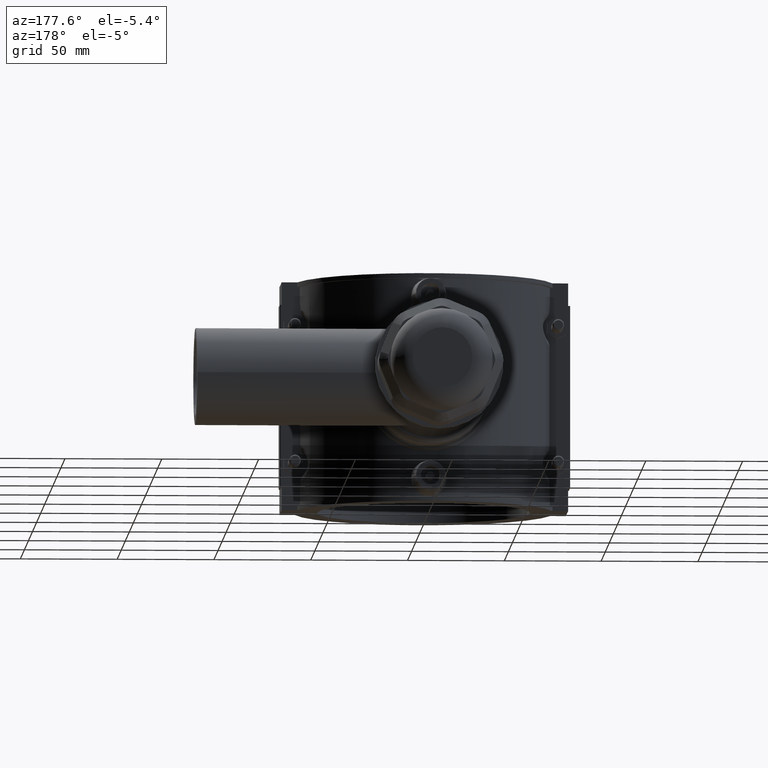
[diagram: clean part render]
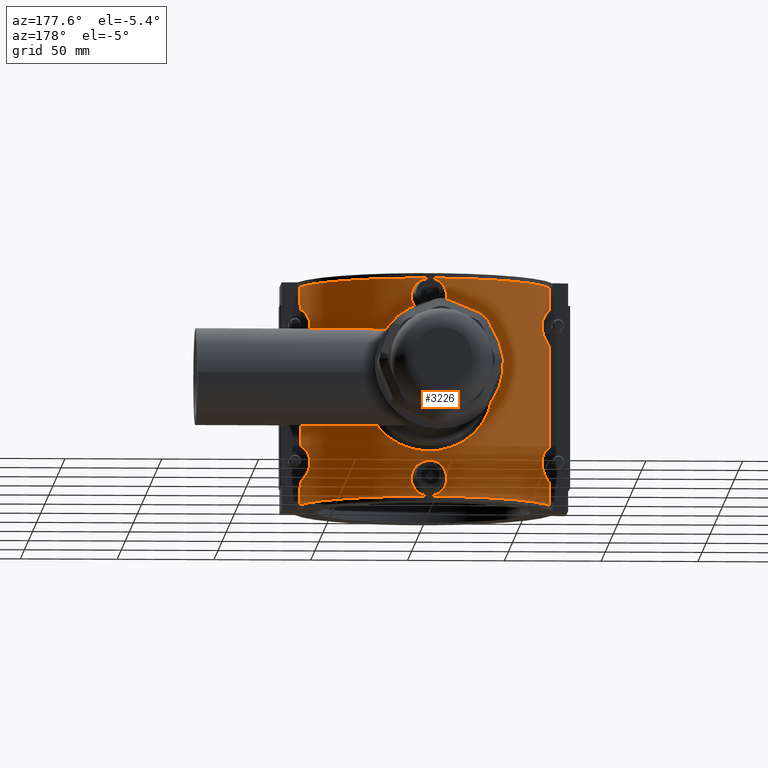
[diagram: same view with one face highlighted and labeled with its STEP entity id]
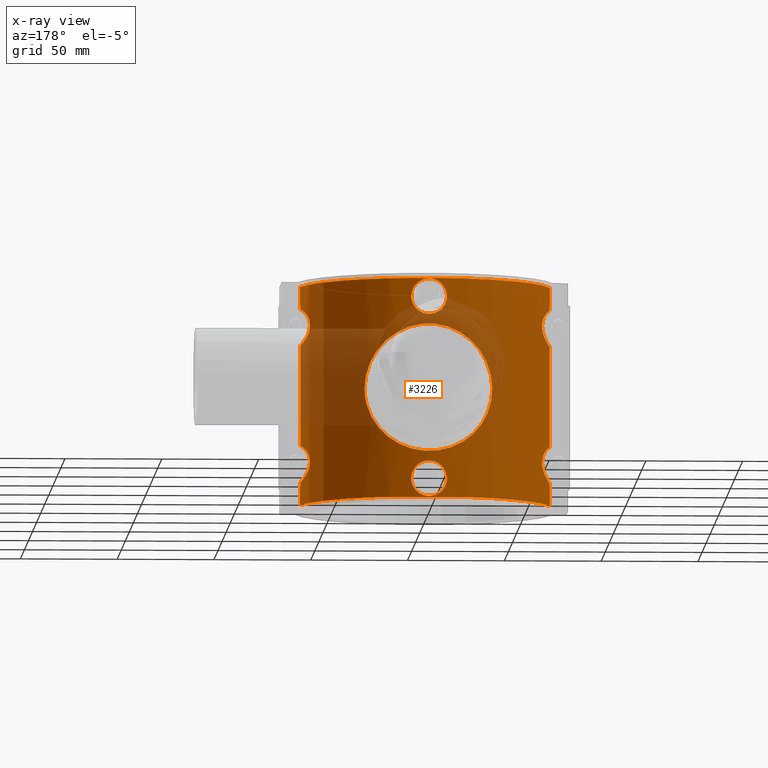
[diagram: x-ray of the same camera — body ghosted, the highlighted face saturated]
A machine part, auxiliary view. The second image highlights one B-rep face of the part: STEP entity #3226.
The next image is the same camera in x-ray: the body ghosted, the highlighted face saturated — about 25% of this face is hidden behind the body in this view.
In plain terms, the highlighted cylindrical surface (partial cylindrical patch) has radius 66 mm, axis along (0, 0, 1).
Its self-contained STEP definition (entity closure, byte-faithful):
#112=LINE('',#5493,#399);
#132=LINE('',#5576,#419);
#136=LINE('',#5584,#423);
#137=LINE('',#5588,#424);
#138=LINE('',#5603,#425);
#139=LINE('',#5620,#426);
#140=LINE('',#5623,#427);
#141=LINE('',#5627,#428);
#142=LINE('',#5643,#429);
#143=LINE('',#5660,#430);
#399=VECTOR('',#3977,9.43999999999999);
#419=VECTOR('',#4025,9.43999999999999);
#423=VECTOR('',#4031,9.43999999999999);
#424=VECTOR('',#4034,2.44823811899649);
#425=VECTOR('',#4035,52.096476237993);
#426=VECTOR('',#4036,2.4482381189965);
#427=VECTOR('',#4039,9.43999999999999);
#428=VECTOR('',#4042,2.4482381189965);
#429=VECTOR('',#4043,52.096476237993);
#430=VECTOR('',#4044,2.44823811899649);
#640=FACE_BOUND('',#1057,.T.);
#641=FACE_BOUND('',#1058,.T.);
#642=FACE_BOUND('',#1059,.T.);
#688=B_SPLINE_CURVE_WITH_KNOTS('',3,(#5395,#5396,#5397,#5398,#5399,#5400,
#5401,#5402,#5403,#5404,#5405,#5406,#5407,#5408,#5409,#5410,#5411,#5412,
#5413,#5414,#5415,#5416,#5417,#5418,#5419,#5420,#5421,#5422,#5423,#5424,
#5425,#5426,#5427,#5428,#5429,#5430,#5431,#5432,#5433,#5434,#5435,#5436,
#5437,#5438,#5439,#5440,#5441,#5442,#5443,#5444,#5445,#5446,#5447,#5448,
#5449,#5450,#5451,#5452,#5453,#5454,#5455,#5456,#5457,#5458,#5459,#5460),
 .UNSPECIFIED.,.T.,.F.,(4,2,2,2,2,2,2,2,2,2,2,2,2,2,2,2,2,2,2,2,2,2,2,2,
2,2,2,2,2,2,2,2,4),(0.,0.635110081454431,1.27022016290886,1.90533024436329,
2.54044032581772,3.17381906630573,3.80719780679374,4.44057654728175,5.07395528776976,
5.70733402825777,6.34071276874578,6.97409150923379,7.6074702497218,8.24258033117624,
8.87769041263067,9.5128004940851,10.1479105755395,10.783020656994,11.4181307384484,
12.0532408199028,12.6883509013572,13.3217296418453,13.9551083823333,14.5884871228213,
15.2218658633093,15.8552446037973,16.4886233442853,17.1220020847733,17.7553808252613,
18.3904909067158,19.0256009881702,19.6607110696246,20.2958211510791),
 .UNSPECIFIED.);
#691=B_SPLINE_CURVE_WITH_KNOTS('',3,(#5590,#5591,#5592,#5593,#5594,#5595,
#5596,#5597,#5598,#5599,#5600,#5601),.UNSPECIFIED.,.F.,.F.,(4,1,1,1,1,1,
1,1,1,4),(-3.87372629675472,-3.39800032867908,-2.92227436060344,-2.44654839252779,
-2.32761690050888,-1.97082242445215,-1.73295944041433,-1.49509645637651,
-1.01937048830087,-0.543644520225222),.UNSPECIFIED.);
#692=B_SPLINE_CURVE_WITH_KNOTS('',3,(#5605,#5606,#5607,#5608,#5609,#5610,
#5611,#5612,#5613,#5614,#5615,#5616,#5617,#5618),.UNSPECIFIED.,.F.,.F.,
(4,1,1,1,1,1,1,1,1,1,1,4),(-3.87372630043149,-3.3980003318308,-2.92227436323011,
-2.68441137892976,-2.44654839462942,-2.20868541032907,-1.97082242602873,
-1.85189093387856,-1.73295944172838,-1.49509645742804,-1.01937048882735,
-0.543644520226659),.UNSPECIFIED.);
#693=B_SPLINE_CURVE_WITH_KNOTS('',3,(#5629,#5630,#5631,#5632,#5633,#5634,
#5635,#5636,#5637,#5638,#5639,#5640,#5641),.UNSPECIFIED.,.F.,.F.,(4,1,1,
1,1,1,1,1,1,1,4),(-3.87318618089828,-3.39746020268988,-2.92173422448147,
-2.68387123537727,-2.44600824627306,-2.20814525716886,-1.97028226806466,
-1.73241927896045,-1.49455628985625,-1.01883031164784,-0.543104333439435),
 .UNSPECIFIED.);
#694=B_SPLINE_CURVE_WITH_KNOTS('',3,(#5645,#5646,#5647,#5648,#5649,#5650,
#5651,#5652,#5653,#5654,#5655,#5656,#5657,#5658),.UNSPECIFIED.,.F.,.F.,
(4,1,1,1,1,1,1,1,1,1,1,4),(-3.87372630198934,-3.39800033316619,-2.92227436434304,
-2.68441137993146,-2.44654839551988,-2.20868541110831,-1.97082242669673,
-1.85189093449094,-1.73295944228515,-1.49509645787358,-1.01937048905042,
-0.543644520227269),.UNSPECIFIED.);
#695=B_SPLINE_CURVE_WITH_KNOTS('',3,(#5663,#5664,#5665,#5666,#5667,#5668,
#5669,#5670,#5671,#5672,#5673,#5674,#5675,#5676,#5677,#5678,#5679,#5680,
#5681,#5682,#5683,#5684,#5685,#5686,#5687,#5688,#5689,#5690,#5691,#5692,
#5693,#5694,#5695,#5696),.UNSPECIFIED.,.T.,.F.,(4,2,2,2,2,2,2,2,2,2,2,2,
2,2,2,2,4),(0.,0.346935904986798,0.693871809973595,1.04030921731693,1.38674662466027,
1.73318403200361,2.07962143934695,2.42655734433375,2.77349324932054,3.12042915430734,
3.46736505929414,3.81380246663748,4.16023987398082,4.50667728132415,4.85311468866749,
5.20005059365429,5.54698649864109),.UNSPECIFIED.);
#696=B_SPLINE_CURVE_WITH_KNOTS('',3,(#5698,#5699,#5700,#5701,#5702,#5703,
#5704,#5705,#5706,#5707,#5708,#5709,#5710,#5711,#5712,#5713,#5714,#5715,
#5716,#5717,#5718,#5719,#5720,#5721,#5722,#5723,#5724,#5725,#5726,#5727,
#5728,#5729,#5730,#5731),.UNSPECIFIED.,.T.,.F.,(4,2,2,2,2,2,2,2,2,2,2,2,
2,2,2,2,4),(0.,0.346935904986798,0.693871809973595,1.04030921731693,1.38674662466027,
1.73318403200361,2.07962143934695,2.42655734433375,2.77349324932054,3.12042915430734,
3.46736505929414,3.81380246663748,4.16023987398082,4.50667728132415,4.85311468866749,
5.20005059365429,5.54698649864109),.UNSPECIFIED.);
#749=CYLINDRICAL_SURFACE('',#3485,66.);
#846=FACE_OUTER_BOUND('',#1056,.T.);
#1056=EDGE_LOOP('',(#2408,#2409,#2410,#2411,#2412,#2413,#2414,#2415,#2416,
#2417,#2418,#2419,#2420,#2421,#2422,#2423,#2424,#2425,#2426,#2427));
#1057=EDGE_LOOP('',(#2428));
#1058=EDGE_LOOP('',(#2429));
#1059=EDGE_LOOP('',(#2430));
#1264=CIRCLE('',#3464,66.);
#1272=CIRCLE('',#3478,66.);
#1276=CIRCLE('',#3486,66.);
#1277=CIRCLE('',#3487,66.);
#1278=CIRCLE('',#3488,66.);
#1279=CIRCLE('',#3489,66.);
#1417=VERTEX_POINT('',#5394);
#1422=VERTEX_POINT('',#5471);
#1423=VERTEX_POINT('',#5473);
#1430=VERTEX_POINT('',#5492);
#1450=VERTEX_POINT('',#5559);
#1451=VERTEX_POINT('',#5561);
#1455=VERTEX_POINT('',#5575);
#1458=VERTEX_POINT('',#5583);
#1459=VERTEX_POINT('',#5585);
#1460=VERTEX_POINT('',#5587);
#1461=VERTEX_POINT('',#5589);
#1462=VERTEX_POINT('',#5602);
#1463=VERTEX_POINT('',#5604);
#1464=VERTEX_POINT('',#5619);
#1465=VERTEX_POINT('',#5622);
#1466=VERTEX_POINT('',#5624);
#1467=VERTEX_POINT('',#5626);
#1468=VERTEX_POINT('',#5628);
#1469=VERTEX_POINT('',#5642);
#1470=VERTEX_POINT('',#5644);
#1471=VERTEX_POINT('',#5659);
#1472=VERTEX_POINT('',#5662);
#1473=VERTEX_POINT('',#5697);
#1768=EDGE_CURVE('',#1417,#1417,#688,.T.);
#1775=EDGE_CURVE('',#1422,#1423,#1264,.T.);
#1783=EDGE_CURVE('',#1430,#1422,#112,.T.);
#1806=EDGE_CURVE('',#1451,#1450,#1272,.T.);
#1813=EDGE_CURVE('',#1451,#1455,#132,.T.);
#1817=EDGE_CURVE('',#1458,#1423,#136,.T.);
#1818=EDGE_CURVE('',#1458,#1459,#1276,.T.);
#1819=EDGE_CURVE('',#1459,#1460,#137,.T.);
#1820=EDGE_CURVE('',#1461,#1460,#691,.T.);
#1821=EDGE_CURVE('',#1461,#1462,#138,.T.);
#1822=EDGE_CURVE('',#1463,#1462,#692,.T.);
#1823=EDGE_CURVE('',#1463,#1464,#139,.T.);
#1824=EDGE_CURVE('',#1464,#1455,#1277,.T.);
#1825=EDGE_CURVE('',#1450,#1465,#140,.T.);
#1826=EDGE_CURVE('',#1465,#1466,#1278,.T.);
#1827=EDGE_CURVE('',#1466,#1467,#141,.T.);
#1828=EDGE_CURVE('',#1468,#1467,#693,.T.);
#1829=EDGE_CURVE('',#1468,#1469,#142,.T.);
#1830=EDGE_CURVE('',#1470,#1469,#694,.T.);
#1831=EDGE_CURVE('',#1470,#1471,#143,.T.);
#1832=EDGE_CURVE('',#1471,#1430,#1279,.T.);
#1833=EDGE_CURVE('',#1472,#1472,#695,.T.);
#1834=EDGE_CURVE('',#1473,#1473,#696,.T.);
#2408=ORIENTED_EDGE('',*,*,#1775,.T.);
#2409=ORIENTED_EDGE('',*,*,#1817,.F.);
#2410=ORIENTED_EDGE('',*,*,#1818,.T.);
#2411=ORIENTED_EDGE('',*,*,#1819,.T.);
#2412=ORIENTED_EDGE('',*,*,#1820,.F.);
#2413=ORIENTED_EDGE('',*,*,#1821,.T.);
#2414=ORIENTED_EDGE('',*,*,#1822,.F.);
#2415=ORIENTED_EDGE('',*,*,#1823,.T.);
#2416=ORIENTED_EDGE('',*,*,#1824,.T.);
#2417=ORIENTED_EDGE('',*,*,#1813,.F.);
#2418=ORIENTED_EDGE('',*,*,#1806,.T.);
#2419=ORIENTED_EDGE('',*,*,#1825,.T.);
#2420=ORIENTED_EDGE('',*,*,#1826,.T.);
#2421=ORIENTED_EDGE('',*,*,#1827,.T.);
#2422=ORIENTED_EDGE('',*,*,#1828,.F.);
#2423=ORIENTED_EDGE('',*,*,#1829,.T.);
#2424=ORIENTED_EDGE('',*,*,#1830,.F.);
#2425=ORIENTED_EDGE('',*,*,#1831,.T.);
#2426=ORIENTED_EDGE('',*,*,#1832,.T.);
#2427=ORIENTED_EDGE('',*,*,#1783,.T.);
#2428=ORIENTED_EDGE('',*,*,#1768,.T.);
#2429=ORIENTED_EDGE('',*,*,#1833,.T.);
#2430=ORIENTED_EDGE('',*,*,#1834,.T.);
#3226=ADVANCED_FACE('',(#846,#640,#641,#642),#749,.T.);
#3464=AXIS2_PLACEMENT_3D('',#5475,#3959,#3960);
#3478=AXIS2_PLACEMENT_3D('',#5562,#4008,#4009);
#3485=AXIS2_PLACEMENT_3D('',#5582,#4029,#4030);
#3486=AXIS2_PLACEMENT_3D('',#5586,#4032,#4033);
#3487=AXIS2_PLACEMENT_3D('',#5621,#4037,#4038);
#3488=AXIS2_PLACEMENT_3D('',#5625,#4040,#4041);
#3489=AXIS2_PLACEMENT_3D('',#5661,#4045,#4046);
#3959=DIRECTION('center_axis',(0.,0.,1.));
#3960=DIRECTION('ref_axis',(1.,0.,0.));
#3977=DIRECTION('',(0.,0.,-1.));
#4008=DIRECTION('center_axis',(0.,0.,-1.));
#4009=DIRECTION('ref_axis',(1.,0.,0.));
#4025=DIRECTION('',(0.,0.,-1.));
#4029=DIRECTION('center_axis',(0.,0.,1.));
#4030=DIRECTION('ref_axis',(1.,0.,0.));
#4031=DIRECTION('',(0.,0.,-1.));
#4032=DIRECTION('center_axis',(0.,0.,-1.));
#4033=DIRECTION('ref_axis',(1.,0.,0.));
#4034=DIRECTION('',(0.,0.,1.));
#4035=DIRECTION('',(0.,0.,1.));
#4036=DIRECTION('',(0.,0.,1.));
#4037=DIRECTION('center_axis',(0.,0.,1.));
#4038=DIRECTION('ref_axis',(1.,0.,0.));
#4039=DIRECTION('',(0.,0.,-1.));
#4040=DIRECTION('center_axis',(0.,0.,1.));
#4041=DIRECTION('ref_axis',(1.,0.,0.));
#4042=DIRECTION('',(0.,0.,-1.));
#4043=DIRECTION('',(0.,0.,-1.));
#4044=DIRECTION('',(0.,0.,-1.));
#4045=DIRECTION('center_axis',(0.,0.,-1.));
#4046=DIRECTION('ref_axis',(1.,0.,0.));
#5394=CARTESIAN_POINT('',(33.,57.157676649773,5.55111512312578E-16));
#5395=CARTESIAN_POINT('Ctrl Pts',(33.,57.157676649773,5.55111512312578E-16));
#5396=CARTESIAN_POINT('Ctrl Pts',(33.,57.157676649773,2.1170336048481));
#5397=CARTESIAN_POINT('Ctrl Pts',(32.7930803921507,57.2787415408136,4.29063786119955));
#5398=CARTESIAN_POINT('Ctrl Pts',(31.9385571244343,57.7595786156519,8.58628352636246));
#5399=CARTESIAN_POINT('Ctrl Pts',(31.2913050711237,58.1185466426358,10.7084848472058));
#5400=CARTESIAN_POINT('Ctrl Pts',(29.5974666379049,58.9991611550135,14.7583068582407));
#5401=CARTESIAN_POINT('Ctrl Pts',(28.5495315090571,59.5203710622391,16.6898573525336));
#5402=CARTESIAN_POINT('Ctrl Pts',(26.1413356761477,60.6166717119623,20.2548181302783));
#5403=CARTESIAN_POINT('Ctrl Pts',(24.7807330537401,61.1907311554408,21.888314504572));
#5404=CARTESIAN_POINT('Ctrl Pts',(21.8922569413814,62.2824725070482,24.7767906169308));
#5405=CARTESIAN_POINT('Ctrl Pts',(20.2607144952408,62.8406910221601,26.1368297552177));
#5406=CARTESIAN_POINT('Ctrl Pts',(16.6949541325008,63.8805722144276,28.5466097514241));
#5407=CARTESIAN_POINT('Ctrl Pts',(14.7606306361138,64.36143855462,29.5965379515537));
#5408=CARTESIAN_POINT('Ctrl Pts',(10.7050018727928,65.1588361552544,31.2927185796387));
#5409=CARTESIAN_POINT('Ctrl Pts',(8.57983006572046,65.4755408413926,31.9403261895683));
#5410=CARTESIAN_POINT('Ctrl Pts',(4.28300180131361,65.89625048521,32.7941125301766));
#5411=CARTESIAN_POINT('Ctrl Pts',(2.11126246829337,66.,33.));
#5412=CARTESIAN_POINT('Ctrl Pts',(-2.11126246829336,66.,33.));
#5413=CARTESIAN_POINT('Ctrl Pts',(-4.28300180131361,65.89625048521,32.7941125301766));
#5414=CARTESIAN_POINT('Ctrl Pts',(-8.57983006572046,65.4755408413926,31.9403261895683));
#5415=CARTESIAN_POINT('Ctrl Pts',(-10.7050018727928,65.1588361552544,31.2927185796387));
#5416=CARTESIAN_POINT('Ctrl Pts',(-14.7606306361138,64.36143855462,29.5965379515537));
#5417=CARTESIAN_POINT('Ctrl Pts',(-16.6949541325008,63.8805722144276,28.5466097514241));
#5418=CARTESIAN_POINT('Ctrl Pts',(-20.2607144952408,62.8406910221602,26.1368297552177));
#5419=CARTESIAN_POINT('Ctrl Pts',(-21.8922569413814,62.2824725070482,24.7767906169308));
#5420=CARTESIAN_POINT('Ctrl Pts',(-24.7807330537401,61.1907311554408,21.888314504572));
#5421=CARTESIAN_POINT('Ctrl Pts',(-26.1413356761477,60.6166717119623,20.2548181302783));
#5422=CARTESIAN_POINT('Ctrl Pts',(-28.5495315090571,59.5203710622391,16.6898573525336));
#5423=CARTESIAN_POINT('Ctrl Pts',(-29.5974666379049,58.9991611550135,14.7583068582407));
#5424=CARTESIAN_POINT('Ctrl Pts',(-31.2913050711237,58.1185466426358,10.7084848472058));
#5425=CARTESIAN_POINT('Ctrl Pts',(-31.9385571244343,57.7595786156519,8.58628352636247));
#5426=CARTESIAN_POINT('Ctrl Pts',(-32.7930803921507,57.2787415408136,4.29063786119956));
#5427=CARTESIAN_POINT('Ctrl Pts',(-33.,57.157676649773,2.11703360484811));
#5428=CARTESIAN_POINT('Ctrl Pts',(-33.,57.157676649773,-2.1170336048481));
#5429=CARTESIAN_POINT('Ctrl Pts',(-32.7930803921507,57.2787415408136,-4.29063786119955));
#5430=CARTESIAN_POINT('Ctrl Pts',(-31.9385571244343,57.7595786156519,-8.58628352636245));
#5431=CARTESIAN_POINT('Ctrl Pts',(-31.2913050711237,58.1185466426358,-10.7084848472058));
#5432=CARTESIAN_POINT('Ctrl Pts',(-29.5974666379049,58.9991611550135,-14.7583068582407));
#5433=CARTESIAN_POINT('Ctrl Pts',(-28.5495315090571,59.5203710622391,-16.6898573525336));
#5434=CARTESIAN_POINT('Ctrl Pts',(-26.1413356761477,60.6166717119623,-20.2548181302783));
#5435=CARTESIAN_POINT('Ctrl Pts',(-24.7807330537401,61.1907311554408,-21.888314504572));
#5436=CARTESIAN_POINT('Ctrl Pts',(-21.8922569413814,62.2824725070482,-24.7767906169308));
#5437=CARTESIAN_POINT('Ctrl Pts',(-20.2607144952408,62.8406910221601,-26.1368297552177));
#5438=CARTESIAN_POINT('Ctrl Pts',(-16.6949541325008,63.8805722144276,-28.5466097514241));
#5439=CARTESIAN_POINT('Ctrl Pts',(-14.7606306361138,64.36143855462,-29.5965379515537));
#5440=CARTESIAN_POINT('Ctrl Pts',(-10.7050018727928,65.1588361552544,-31.2927185796387));
#5441=CARTESIAN_POINT('Ctrl Pts',(-8.57983006572046,65.4755408413926,-31.9403261895683));
#5442=CARTESIAN_POINT('Ctrl Pts',(-4.28300180131361,65.89625048521,-32.7941125301766));
#5443=CARTESIAN_POINT('Ctrl Pts',(-2.11126246829337,66.,-33.));
#5444=CARTESIAN_POINT('Ctrl Pts',(2.11126246829336,66.,-33.));
#5445=CARTESIAN_POINT('Ctrl Pts',(4.28300180131361,65.89625048521,-32.7941125301766));
#5446=CARTESIAN_POINT('Ctrl Pts',(8.57983006572047,65.4755408413926,-31.9403261895683));
#5447=CARTESIAN_POINT('Ctrl Pts',(10.7050018727928,65.1588361552544,-31.2927185796387));
#5448=CARTESIAN_POINT('Ctrl Pts',(14.7606306361138,64.36143855462,-29.5965379515537));
#5449=CARTESIAN_POINT('Ctrl Pts',(16.6949541325008,63.8805722144276,-28.5466097514241));
#5450=CARTESIAN_POINT('Ctrl Pts',(20.2607144952408,62.8406910221602,-26.1368297552177));
#5451=CARTESIAN_POINT('Ctrl Pts',(21.8922569413814,62.2824725070482,-24.7767906169308));
#5452=CARTESIAN_POINT('Ctrl Pts',(24.7807330537401,61.1907311554408,-21.888314504572));
#5453=CARTESIAN_POINT('Ctrl Pts',(26.1413356761477,60.6166717119623,-20.2548181302783));
#5454=CARTESIAN_POINT('Ctrl Pts',(28.5495315090571,59.5203710622391,-16.6898573525336));
#5455=CARTESIAN_POINT('Ctrl Pts',(29.5974666379049,58.9991611550135,-14.7583068582407));
#5456=CARTESIAN_POINT('Ctrl Pts',(31.2913050711237,58.1185466426358,-10.7084848472058));
#5457=CARTESIAN_POINT('Ctrl Pts',(31.9385571244343,57.7595786156519,-8.58628352636246));
#5458=CARTESIAN_POINT('Ctrl Pts',(32.7930803921507,57.2787415408136,-4.29063786119956));
#5459=CARTESIAN_POINT('Ctrl Pts',(33.,57.157676649773,-2.11703360484811));
#5460=CARTESIAN_POINT('Ctrl Pts',(33.,57.157676649773,5.55111512312578E-16));
#5471=CARTESIAN_POINT('',(64.5518202686803,13.75,-56.64));
#5473=CARTESIAN_POINT('',(-64.5518202686803,13.75,-56.64));
#5475=CARTESIAN_POINT('Origin',(0.,0.,-56.64));
#5492=CARTESIAN_POINT('',(64.5518202686802,13.7500000000001,-47.2));
#5493=CARTESIAN_POINT('',(64.5518202686803,13.75,0.));
#5559=CARTESIAN_POINT('',(64.5518202686803,13.75,56.64));
#5561=CARTESIAN_POINT('',(-64.5518202686803,13.75,56.64));
#5562=CARTESIAN_POINT('Origin',(0.,0.,56.64));
#5575=CARTESIAN_POINT('',(-64.5518202686802,13.7500000000001,47.2));
#5576=CARTESIAN_POINT('',(-64.5518202686803,13.75,0.));
#5582=CARTESIAN_POINT('Origin',(0.,0.,0.));
#5583=CARTESIAN_POINT('',(-64.5518202686802,13.7500000000001,-47.2));
#5584=CARTESIAN_POINT('',(-64.5518202686803,13.75,0.));
#5585=CARTESIAN_POINT('',(-64.3306886330311,14.7500000000003,-47.2));
#5586=CARTESIAN_POINT('Origin',(0.,0.,-47.2));
#5587=CARTESIAN_POINT('',(-64.3306886330311,14.7500000000003,-44.7517618810035));
#5588=CARTESIAN_POINT('',(-64.3306886330311,14.7500000000003,0.));
#5589=CARTESIAN_POINT('',(-64.3306886330311,14.7500000000003,-26.0482381189965));
#5590=CARTESIAN_POINT('Ctrl Pts',(-64.3306886330311,14.7500000000003,-26.0482381189965));
#5591=CARTESIAN_POINT('Ctrl Pts',(-63.9527912554927,16.3981626121804,-26.3827329004399));
#5592=CARTESIAN_POINT('Ctrl Pts',(-63.0778690868478,19.6261025075132,-27.2310383266353));
#5593=CARTESIAN_POINT('Ctrl Pts',(-61.5137264809278,24.0558903026526,-29.3000957522392));
#5594=CARTESIAN_POINT('Ctrl Pts',(-60.3897986198586,26.6421844238724,-31.9335356590793));
#5595=CARTESIAN_POINT('Ctrl Pts',(-59.9224916991423,27.6653952476638,-34.9717815952484));
#5596=CARTESIAN_POINT('Ctrl Pts',(-60.0554425576268,27.3816590012757,-37.4440252437804));
#5597=CARTESIAN_POINT('Ctrl Pts',(-60.7699777265275,25.7702881327455,-39.7566764526898));
#5598=CARTESIAN_POINT('Ctrl Pts',(-61.7657357889132,23.3326659218883,-41.8352017051385));
#5599=CARTESIAN_POINT('Ctrl Pts',(-63.0806192708269,19.6212087501384,-43.5753048876795));
#5600=CARTESIAN_POINT('Ctrl Pts',(-63.9527912554927,16.3981626121804,-44.4172670995602));
#5601=CARTESIAN_POINT('Ctrl Pts',(-64.3306886330311,14.7500000000003,-44.7517618810035));
#5602=CARTESIAN_POINT('',(-64.3306886330311,14.7500000000003,26.0482381189965));
#5603=CARTESIAN_POINT('',(-64.3306886330311,14.7500000000003,0.));
#5604=CARTESIAN_POINT('',(-64.3306886330311,14.7500000000003,44.7517618810035));
#5605=CARTESIAN_POINT('Ctrl Pts',(-64.3306886330311,14.7500000000003,44.7517618810035));
#5606=CARTESIAN_POINT('Ctrl Pts',(-63.9527912572163,16.3981626046634,44.4172671010857));
#5607=CARTESIAN_POINT('Ctrl Pts',(-63.0798147120383,19.6225851019796,43.5753357245552));
#5608=CARTESIAN_POINT('Ctrl Pts',(-61.7685213603749,23.3278982985863,41.834867320585));
#5609=CARTESIAN_POINT('Ctrl Pts',(-60.768119001488,25.7734565677027,39.7567991110615));
#5610=CARTESIAN_POINT('Ctrl Pts',(-60.1667084578027,27.1355063513127,37.7748837116343));
#5611=CARTESIAN_POINT('Ctrl Pts',(-59.9165282850681,27.6756756011679,35.3998998402149));
#5612=CARTESIAN_POINT('Ctrl Pts',(-60.1248627173646,27.2257424100493,33.4215328100373));
#5613=CARTESIAN_POINT('Ctrl Pts',(-60.4687588967187,26.4521723165861,32.0345097618895));
#5614=CARTESIAN_POINT('Ctrl Pts',(-60.8927014330096,25.4685179279021,30.782923973912));
#5615=CARTESIAN_POINT('Ctrl Pts',(-61.7684514854648,23.3278392592335,28.9644641587819));
#5616=CARTESIAN_POINT('Ctrl Pts',(-63.0818663583026,19.6193517478855,27.2259037664876));
#5617=CARTESIAN_POINT('Ctrl Pts',(-63.9527912572163,16.3981626046634,26.3827328989143));
#5618=CARTESIAN_POINT('Ctrl Pts',(-64.3306886330311,14.7500000000003,26.0482381189965));
#5619=CARTESIAN_POINT('',(-64.3306886330311,14.7500000000003,47.2));
#5620=CARTESIAN_POINT('',(-64.3306886330311,14.7500000000003,0.));
#5621=CARTESIAN_POINT('Origin',(0.,0.,47.2));
#5622=CARTESIAN_POINT('',(64.5518202686802,13.7500000000001,47.2));
#5623=CARTESIAN_POINT('',(64.5518202686803,13.75,0.));
#5624=CARTESIAN_POINT('',(64.3306886330311,14.7500000000003,47.2));
#5625=CARTESIAN_POINT('Origin',(0.,0.,47.2));
#5626=CARTESIAN_POINT('',(64.3306886330311,14.7500000000003,44.7517618810035));
#5627=CARTESIAN_POINT('',(64.3306886330311,14.7500000000003,0.));
#5628=CARTESIAN_POINT('',(64.3306886330311,14.7500000000003,26.0482381189965));
#5629=CARTESIAN_POINT('Ctrl Pts',(64.3306886330311,14.7500000000003,26.0482381189965));
#5630=CARTESIAN_POINT('Ctrl Pts',(63.952791309994,16.3981623744786,26.3827328521982));
#5631=CARTESIAN_POINT('Ctrl Pts',(63.0799501970877,19.6223641748561,27.2247398125881));
#5632=CARTESIAN_POINT('Ctrl Pts',(61.7690149009054,23.3269890739918,28.9649255324313));
#5633=CARTESIAN_POINT('Ctrl Pts',(60.7688438422129,25.7722361974724,31.0434417467119));
#5634=CARTESIAN_POINT('Ctrl Pts',(60.1680089295915,27.1333112507977,33.0259091161999));
#5635=CARTESIAN_POINT('Ctrl Pts',(59.9162757439481,27.676117016215,35.3996289848923));
#5636=CARTESIAN_POINT('Ctrl Pts',(60.1670476180397,27.1349532376828,37.774845601644));
#5637=CARTESIAN_POINT('Ctrl Pts',(60.7681726460776,25.7733774635095,39.7567281726444));
#5638=CARTESIAN_POINT('Ctrl Pts',(61.7686494910263,23.3276910734894,41.8348509701333));
#5639=CARTESIAN_POINT('Ctrl Pts',(63.0797928410758,19.6226227709339,43.5753333933684));
#5640=CARTESIAN_POINT('Ctrl Pts',(63.952791309994,16.3981623744787,44.4172671478017));
#5641=CARTESIAN_POINT('Ctrl Pts',(64.3306886330311,14.7500000000003,44.7517618810035));
#5642=CARTESIAN_POINT('',(64.3306886330311,14.7500000000003,-26.0482381189965));
#5643=CARTESIAN_POINT('',(64.3306886330311,14.7500000000003,0.));
#5644=CARTESIAN_POINT('',(64.3306886330311,14.7500000000003,-44.7517618810035));
#5645=CARTESIAN_POINT('Ctrl Pts',(64.3306886330311,14.7500000000003,-44.7517618810035));
#5646=CARTESIAN_POINT('Ctrl Pts',(63.9527912579466,16.3981626014784,-44.4172671017321));
#5647=CARTESIAN_POINT('Ctrl Pts',(63.0798147157983,19.6225850900723,-43.575335728822));
#5648=CARTESIAN_POINT('Ctrl Pts',(61.7685213610513,23.3278982974153,-41.8348673221215));
#5649=CARTESIAN_POINT('Ctrl Pts',(60.7681190021769,25.773456566055,-39.7567991128281));
#5650=CARTESIAN_POINT('Ctrl Pts',(60.1667084578722,27.1355063513081,-37.77488371266));
#5651=CARTESIAN_POINT('Ctrl Pts',(59.9165282849716,27.6756756014109,-35.3998998402089));
#5652=CARTESIAN_POINT('Ctrl Pts',(60.1248627174564,27.2257424098971,-33.4215328091261));
#5653=CARTESIAN_POINT('Ctrl Pts',(60.4687588970809,26.4521723158343,-32.0345097604762));
#5654=CARTESIAN_POINT('Ctrl Pts',(60.8927014337618,25.4685179260804,-30.7829239720969));
#5655=CARTESIAN_POINT('Ctrl Pts',(61.768451486373,23.3278392572585,-28.9644641569858));
#5656=CARTESIAN_POINT('Ctrl Pts',(63.0818663616767,19.619351737298,-27.2259037626193));
#5657=CARTESIAN_POINT('Ctrl Pts',(63.9527912579466,16.3981626014784,-26.3827328982679));
#5658=CARTESIAN_POINT('Ctrl Pts',(64.3306886330311,14.7500000000003,-26.0482381189965));
#5659=CARTESIAN_POINT('',(64.3306886330311,14.7500000000003,-47.2));
#5660=CARTESIAN_POINT('',(64.3306886330311,14.7500000000003,0.));
#5661=CARTESIAN_POINT('Origin',(0.,0.,-47.2));
#5662=CARTESIAN_POINT('',(9.21889149209569,65.3529803425748,-47.2));
#5663=CARTESIAN_POINT('Ctrl Pts',(9.21889149209569,65.3529803425748,-47.2));
#5664=CARTESIAN_POINT('Ctrl Pts',(9.21889149209569,65.3529803425748,-46.0435469833774));
#5665=CARTESIAN_POINT('Ctrl Pts',(8.98509660190144,65.3872751603227,-44.8119297781224));
#5666=CARTESIAN_POINT('Ctrl Pts',(8.03868301556763,65.5103601412207,-42.5506935355608));
#5667=CARTESIAN_POINT('Ctrl Pts',(7.32619281653862,65.5972977842866,-41.5209202636936));
#5668=CARTESIAN_POINT('Ctrl Pts',(5.68787926987002,65.7595974634724,-39.8987494664931));
#5669=CARTESIAN_POINT('Ctrl Pts',(4.65283917326547,65.8455692822516,-39.1970628078988));
#5670=CARTESIAN_POINT('Ctrl Pts',(2.38634954577356,65.9666070224349,-38.2665218689298));
#5671=CARTESIAN_POINT('Ctrl Pts',(1.15479135781113,66.,-38.0377153930075));
#5672=CARTESIAN_POINT('Ctrl Pts',(-1.15479135781113,66.,-38.0377153930075));
#5673=CARTESIAN_POINT('Ctrl Pts',(-2.38634954577356,65.9666070224349,-38.2665218689298));
#5674=CARTESIAN_POINT('Ctrl Pts',(-4.65283917326547,65.8455692822516,-39.1970628078988));
#5675=CARTESIAN_POINT('Ctrl Pts',(-5.68787926987002,65.7595974634724,-39.8987494664931));
#5676=CARTESIAN_POINT('Ctrl Pts',(-7.32619281653862,65.5972977842866,-41.5209202636936));
#5677=CARTESIAN_POINT('Ctrl Pts',(-8.03868301556763,65.5103601412207,-42.5506935355608));
#5678=CARTESIAN_POINT('Ctrl Pts',(-8.98509660190144,65.3872751603227,-44.8119297781224));
#5679=CARTESIAN_POINT('Ctrl Pts',(-9.21889149209569,65.3529803425748,-46.0435469833774));
#5680=CARTESIAN_POINT('Ctrl Pts',(-9.21889149209569,65.3529803425748,-48.3564530166227));
#5681=CARTESIAN_POINT('Ctrl Pts',(-8.98509660190144,65.3872751603227,-49.5880702218776));
#5682=CARTESIAN_POINT('Ctrl Pts',(-8.03868301556763,65.5103601412207,-51.8493064644393));
#5683=CARTESIAN_POINT('Ctrl Pts',(-7.32619281653862,65.5972977842866,-52.8790797363064));
#5684=CARTESIAN_POINT('Ctrl Pts',(-5.68787926987002,65.7595974634724,-54.501250533507));
#5685=CARTESIAN_POINT('Ctrl Pts',(-4.65283917326547,65.8455692822516,-55.2029371921012));
#5686=CARTESIAN_POINT('Ctrl Pts',(-2.38634954577356,65.9666070224349,-56.1334781310702));
#5687=CARTESIAN_POINT('Ctrl Pts',(-1.15479135781113,66.,-56.3622846069926));
#5688=CARTESIAN_POINT('Ctrl Pts',(1.15479135781112,66.,-56.3622846069926));
#5689=CARTESIAN_POINT('Ctrl Pts',(2.38634954577355,65.9666070224349,-56.1334781310702));
#5690=CARTESIAN_POINT('Ctrl Pts',(4.65283917326546,65.8455692822516,-55.2029371921012));
#5691=CARTESIAN_POINT('Ctrl Pts',(5.68787926987002,65.7595974634724,-54.501250533507));
#5692=CARTESIAN_POINT('Ctrl Pts',(7.32619281653862,65.5972977842866,-52.8790797363065));
#5693=CARTESIAN_POINT('Ctrl Pts',(8.03868301556763,65.5103601412207,-51.8493064644393));
#5694=CARTESIAN_POINT('Ctrl Pts',(8.98509660190144,65.3872751603227,-49.5880702218776));
#5695=CARTESIAN_POINT('Ctrl Pts',(9.21889149209569,65.3529803425748,-48.3564530166227));
#5696=CARTESIAN_POINT('Ctrl Pts',(9.21889149209569,65.3529803425748,-47.2));
#5697=CARTESIAN_POINT('',(9.21889149209569,65.3529803425748,47.2));
#5698=CARTESIAN_POINT('Ctrl Pts',(-9.21889149209569,65.3529803425748,47.2));
#5699=CARTESIAN_POINT('Ctrl Pts',(-9.21889149209569,65.3529803425748,46.0435469833774));
#5700=CARTESIAN_POINT('Ctrl Pts',(-8.98509660190144,65.3872751603227,44.8119297781224));
#5701=CARTESIAN_POINT('Ctrl Pts',(-8.03868301556763,65.5103601412207,42.5506935355608));
#5702=CARTESIAN_POINT('Ctrl Pts',(-7.32619281653862,65.5972977842866,41.5209202636936));
#5703=CARTESIAN_POINT('Ctrl Pts',(-5.68787926987002,65.7595974634724,39.8987494664931));
#5704=CARTESIAN_POINT('Ctrl Pts',(-4.65283917326548,65.8455692822516,39.1970628078988));
#5705=CARTESIAN_POINT('Ctrl Pts',(-2.38634954577356,65.9666070224349,38.2665218689298));
#5706=CARTESIAN_POINT('Ctrl Pts',(-1.15479135781113,66.,38.0377153930075));
#5707=CARTESIAN_POINT('Ctrl Pts',(1.15479135781113,66.,38.0377153930075));
#5708=CARTESIAN_POINT('Ctrl Pts',(2.38634954577356,65.9666070224349,38.2665218689298));
#5709=CARTESIAN_POINT('Ctrl Pts',(4.65283917326547,65.8455692822516,39.1970628078988));
#5710=CARTESIAN_POINT('Ctrl Pts',(5.68787926987002,65.7595974634724,39.8987494664931));
#5711=CARTESIAN_POINT('Ctrl Pts',(7.32619281653862,65.5972977842866,41.5209202636936));
#5712=CARTESIAN_POINT('Ctrl Pts',(8.03868301556763,65.5103601412207,42.5506935355608));
#5713=CARTESIAN_POINT('Ctrl Pts',(8.98509660190144,65.3872751603227,44.8119297781224));
#5714=CARTESIAN_POINT('Ctrl Pts',(9.21889149209569,65.3529803425748,46.0435469833774));
#5715=CARTESIAN_POINT('Ctrl Pts',(9.21889149209569,65.3529803425748,48.3564530166227));
#5716=CARTESIAN_POINT('Ctrl Pts',(8.98509660190144,65.3872751603227,49.5880702218776));
#5717=CARTESIAN_POINT('Ctrl Pts',(8.03868301556763,65.5103601412207,51.8493064644393));
#5718=CARTESIAN_POINT('Ctrl Pts',(7.32619281653862,65.5972977842866,52.8790797363064));
#5719=CARTESIAN_POINT('Ctrl Pts',(5.68787926987002,65.7595974634724,54.501250533507));
#5720=CARTESIAN_POINT('Ctrl Pts',(4.65283917326547,65.8455692822516,55.2029371921012));
#5721=CARTESIAN_POINT('Ctrl Pts',(2.38634954577356,65.9666070224349,56.1334781310702));
#5722=CARTESIAN_POINT('Ctrl Pts',(1.15479135781113,66.,56.3622846069926));
#5723=CARTESIAN_POINT('Ctrl Pts',(-1.15479135781113,66.,56.3622846069926));
#5724=CARTESIAN_POINT('Ctrl Pts',(-2.38634954577355,65.9666070224349,56.1334781310702));
#5725=CARTESIAN_POINT('Ctrl Pts',(-4.65283917326547,65.8455692822516,55.2029371921012));
#5726=CARTESIAN_POINT('Ctrl Pts',(-5.68787926987002,65.7595974634724,54.501250533507));
#5727=CARTESIAN_POINT('Ctrl Pts',(-7.32619281653862,65.5972977842866,52.8790797363065));
#5728=CARTESIAN_POINT('Ctrl Pts',(-8.03868301556763,65.5103601412207,51.8493064644393));
#5729=CARTESIAN_POINT('Ctrl Pts',(-8.98509660190144,65.3872751603227,49.5880702218776));
#5730=CARTESIAN_POINT('Ctrl Pts',(-9.21889149209569,65.3529803425748,48.3564530166227));
#5731=CARTESIAN_POINT('Ctrl Pts',(-9.21889149209569,65.3529803425748,47.2));